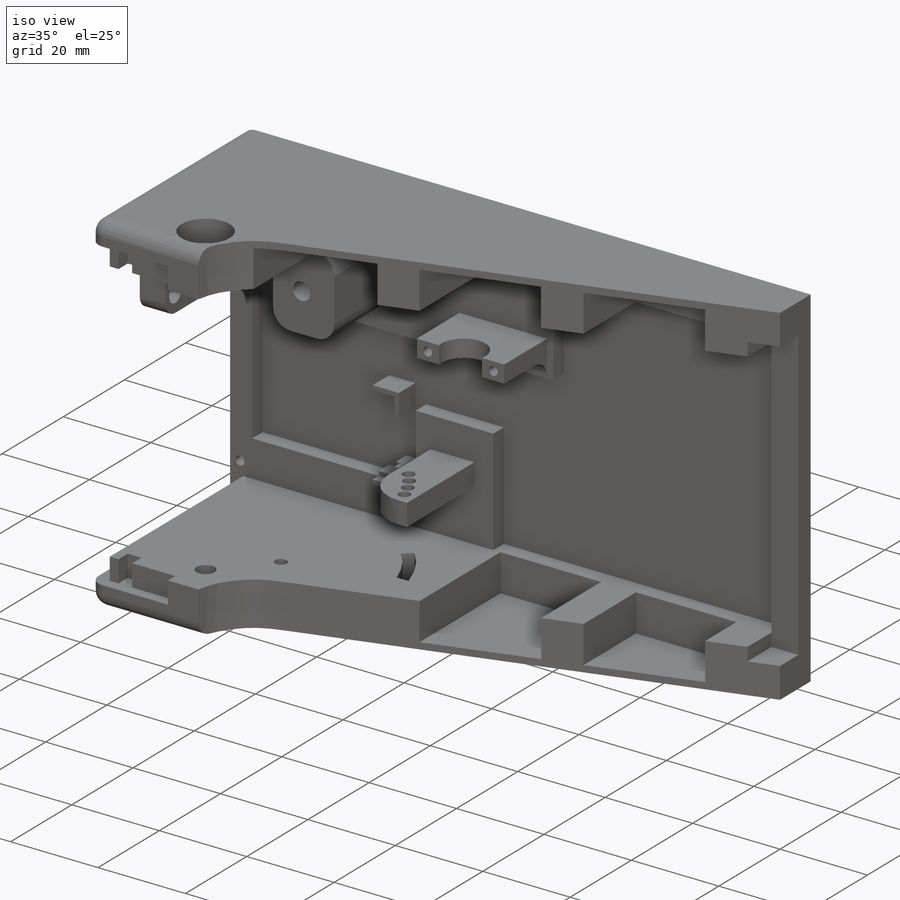
[diagram: iso view]
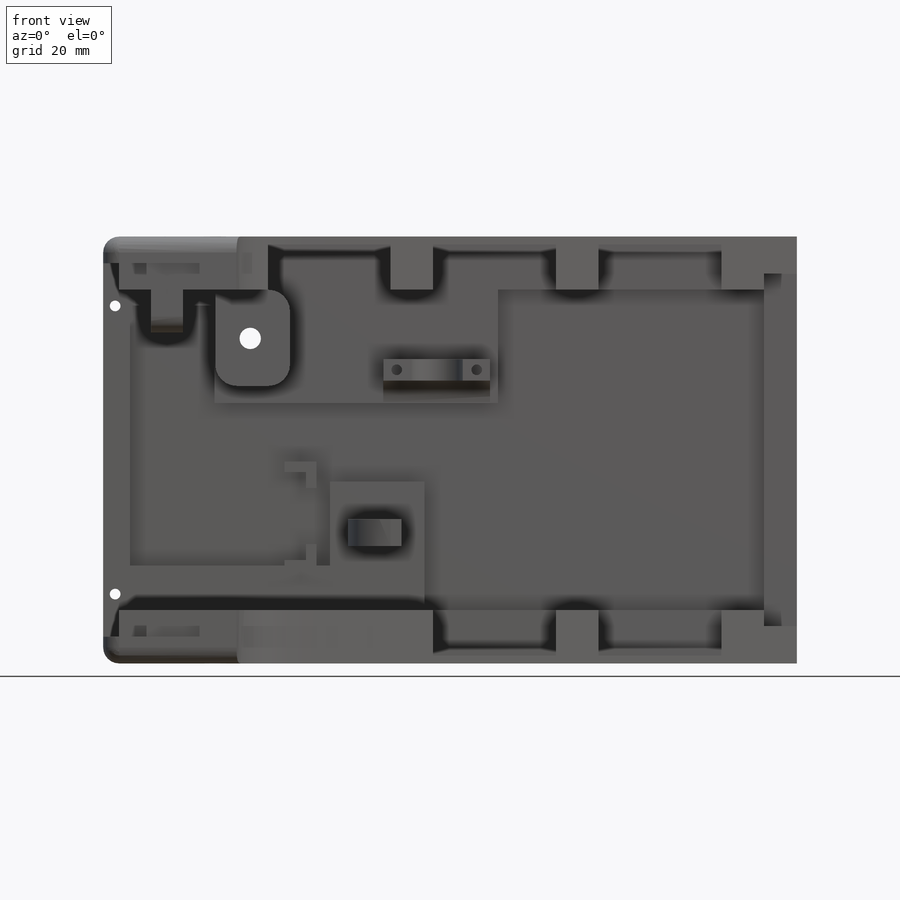
[diagram: front view]
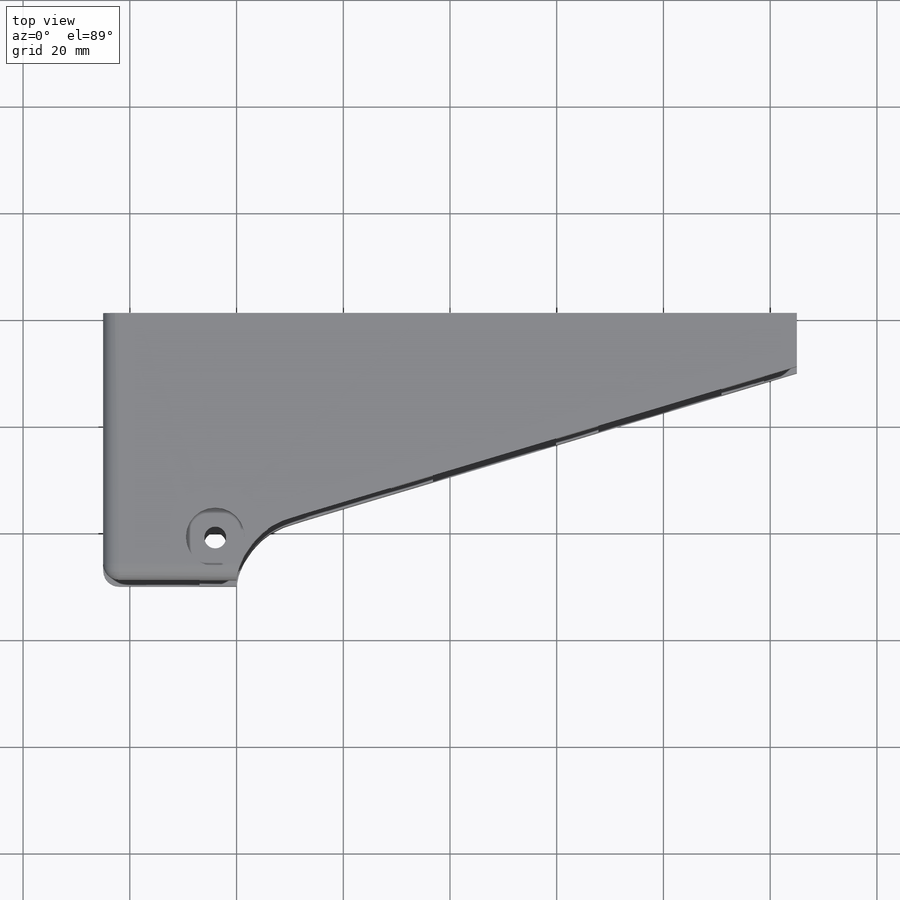
[diagram: top view]
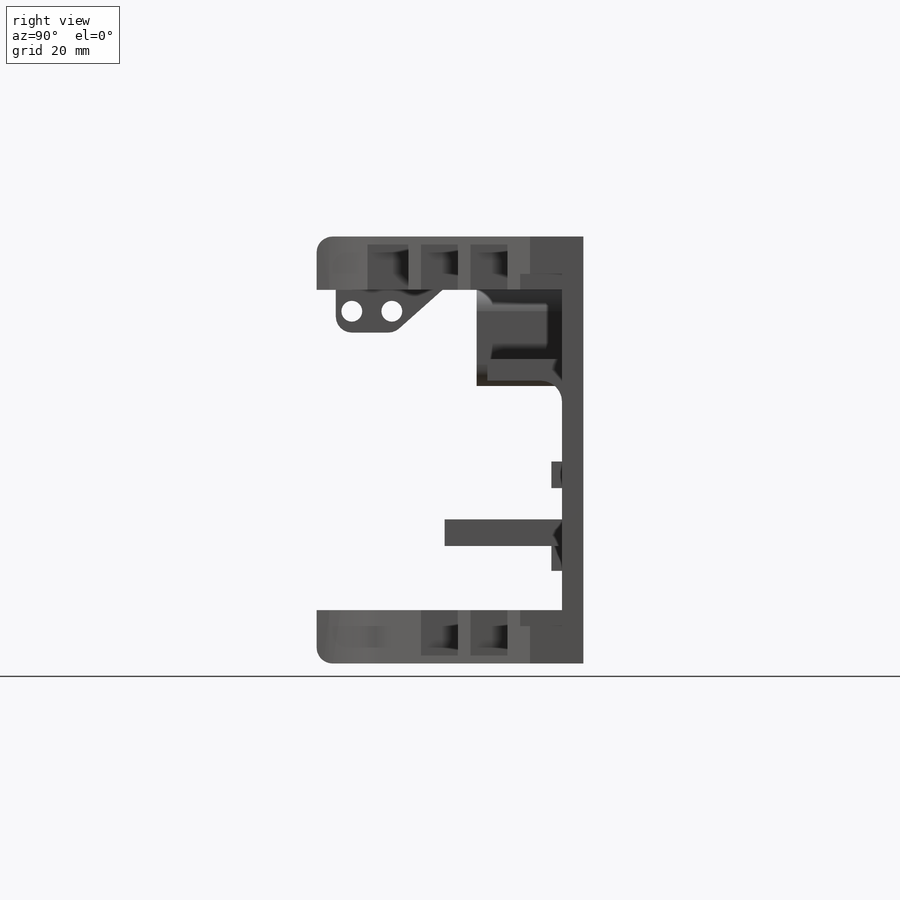
[diagram: right view]
SOLIDWORKS PART (.sldprt)
format: sldprt  version: not decoded by parser v0  size: 894,464 bytes
history: native  units: mm
features: sketch x33, cut_extrude x24, extrude x8, fillet x6, mirror x3, pattern_linear x2, material x1, plane x1 (+14 scaffold rows collapsed)
feature tree (92):
  scaffold x14  (default folders/planes/origin — collapsed)
  material  "Material <not specified>"
  sketch  "Sketch1"  dims[D1=130.0mm D2=80.0mm]
  extrude  "Extrude1"  Depth=50mm
  sketch  "Sketch3"  dims[D1=40.0mm D2=8.5mm D3=25.0mm D4=6.0mm]
  cut_extrude  "Extrude2"  Depth=110mm
  sketch  "Sketch4"  dims[D1=10.0mm D2=10.0mm D3=10.0mm D4=130.0mm D5=10.0mm]
  cut_extrude  "Extrude3"  Depth=4mm
  sketch  "Sketch7"  dims[D1=3.0mm D2=3.0mm D3=5.0mm]
  cut_extrude  "Extrude6"  [1 undecoded]
  sketch  "Sketch8"  dims[D1=15.0mm]
  cut_extrude  "Extrude7"  Depth=2.4mm
  sketch  "Sketch11"  dims[D3=4.1mm D1=8.0mm D2=21.0mm]
  cut_extrude  "Extrude9"  [1 undecoded]
  sketch  "Sketch12"  dims[D1=11.0mm]
  cut_extrude  "Extrude10"  Depth=5mm
  sketch  "Sketch13"
  cut_extrude  "Extrude11"  Depth=3mm
  mirror  "Mirror1"
  sketch  "Sketch15"  dims[D1=18.0mm D2=14.0mm D3=5.0mm D4=21.0mm]
  extrude  "Extrude12"  Depth=16mm
  sketch  "Sketch16"  dims[D1=4.0mm]
  cut_extrude  "Extrude13"  Depth=30mm
  sketch  "Sketch17"  dims[D1=2.6mm]
  cut_extrude  "Extrude14"  Depth=10mm
  sketch  "Sketch18"  dims[c1.D1=~44.919147mm c1.D2=~50.119147mm c1.D3=48.08mm c2.D1=2.6mm c2.D2=1.3mm]
  cut_extrude  "Extrude15"  Depth=10mm
  sketch  "Sketch19"  dims[D1=12.0mm D2=5.0mm D3=10.0mm]
  extrude  "Extrude16"  Depth=22mm
  sketch  "Sketch21"  dims[D1=3.0mm D2=3.0mm D3=3.0mm]
  cut_extrude  "Extrude17"  Depth=20mm
  sketch  "Sketch22"  dims[D1=6.0mm]
  cut_extrude  "Extrude18"  Depth=4mm
  sketch  "Sketch23"  dims[D1=3.0mm]
  cut_extrude  "Extrude19"  Depth=4mm
  sketch  "Sketch26"
  plane  "Plane1"
  fillet  "Fillet3"  Radius=8mm
  fillet  "Fillet4"  Radius=2mm
  sketch  "Sketch28"  dims[D1=52.5mm D2=20.0mm D3=4.0mm D4=13.0mm]
  extrude  "Extrude22"  Depth=14mm
  sketch  "Sketch29"  dims[D1=10.0mm D2=1.0mm]
  cut_extrude  "Extrude23"  Depth=8mm
  sketch  "Sketch34"  dims[D1=2.0mm D2=2.5mm D3=2.5mm]
  cut_extrude  "Extrude28"  Depth=10mm
  fillet  "Fillet5"  Radius=4mm
  sketch  "Sketch32"  dims[D1=8.5mm D2=23.0mm D3=8.0mm]
  cut_extrude  "Extrude26"  [1 undecoded]
  pattern_linear  "LPattern1"  Count1=3 Count2=1 Spacing1=31mm Spacing2=10mm
  mirror  "Mirror2"
  sketch  "Sketch33"
  cut_extrude  "Extrude27"  [1 undecoded]
  sketch  "Sketch31"
  cut_extrude  "Extrude25"  Depth=3.4mm
  sketch  "Sketch35"  dims[D1=11.1mm]
  cut_extrude  "Extrude29"  Depth=15mm
  fillet  "Fillet6"  Radius=4mm
  sketch  "Sketch36"  dims[D1=1.2mm D2=6.0mm D3=11.0mm D4=6.0mm]
  extrude  "Extrude30"  Depth=8mm
  sketch  "Sketch37"  dims[D1=9.0mm]
  extrude  "Extrude31"  Depth=6mm
  sketch  "Sketch38"  dims[D1=3.9mm D2=3.0mm D3=7.5mm]
  cut_extrude  "Extrude32"  Depth=13mm
  fillet  "Fillet7"  Radius=3mm
  sketch  "Sketch40"  dims[D1=6.0mm D2=5.0mm D3=2.0mm D4=2.0mm D5=36.0mm D6=18.5mm D7=36.0mm]
  extrude  "Extrude33"  [1 undecoded]
  sketch  "Sketch41"  dims[D1=36.0mm D2=18.5mm D3=1.0mm]
  extrude  "Extrude34"  Depth=2mm
  sketch  "Sketch43"  dims[D1=3.1mm D2=2.0mm]
  cut_extrude  "Extrude35"  Depth=3mm
  sketch  "Sketch44"  dims[D1=2.0mm D2=2.25mm D3=8.0mm]
  cut_extrude  "Extrude36"  [1 undecoded]
  mirror  "Mirror3"
  sketch  "Sketch45"  dims[D1=3.8mm]
  cut_extrude  "Extrude37"  Depth=2.5mm
  fillet  "Fillet8"  Radius=3mm
  sketch  "Sketch46"  dims[D1=3.0mm D2=3.0mm D3=10.0mm]
  cut_extrude  "Extrude38"  Depth=15mm
  pattern_linear  "LPattern2"  Count1=2 Count2=2 Spacing1=79mm Spacing2=74mm
decode coverage: 63 of 76 modeling features carry decoded parameters
note: ~ marks probable driven/reference dimensions
note: 6 parameter values undecoded
summary: no parameter record found for 6 features
note: suppression state not decoded; provenance and decode notes live in map.json
